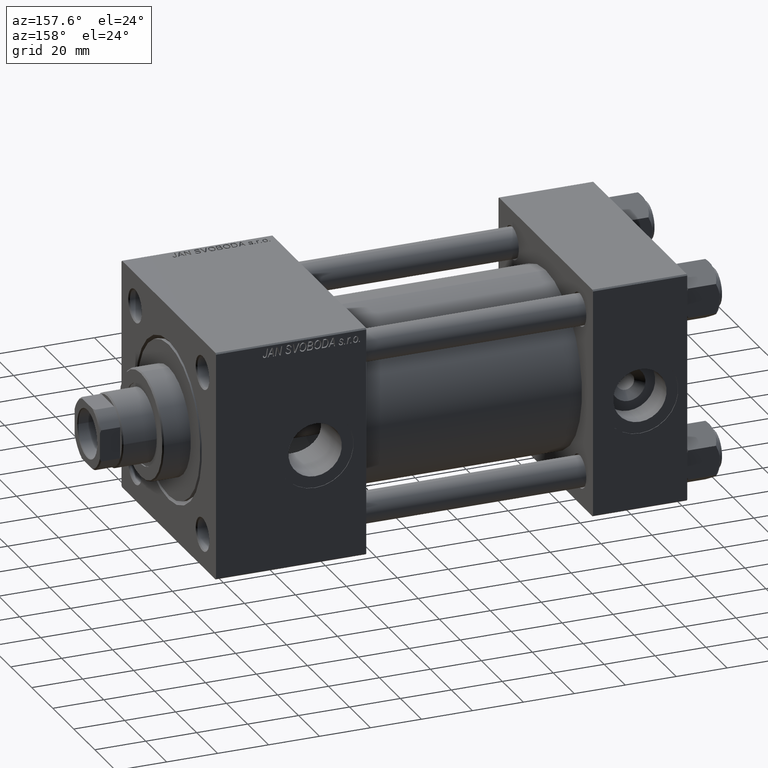
[diagram: clean part render]
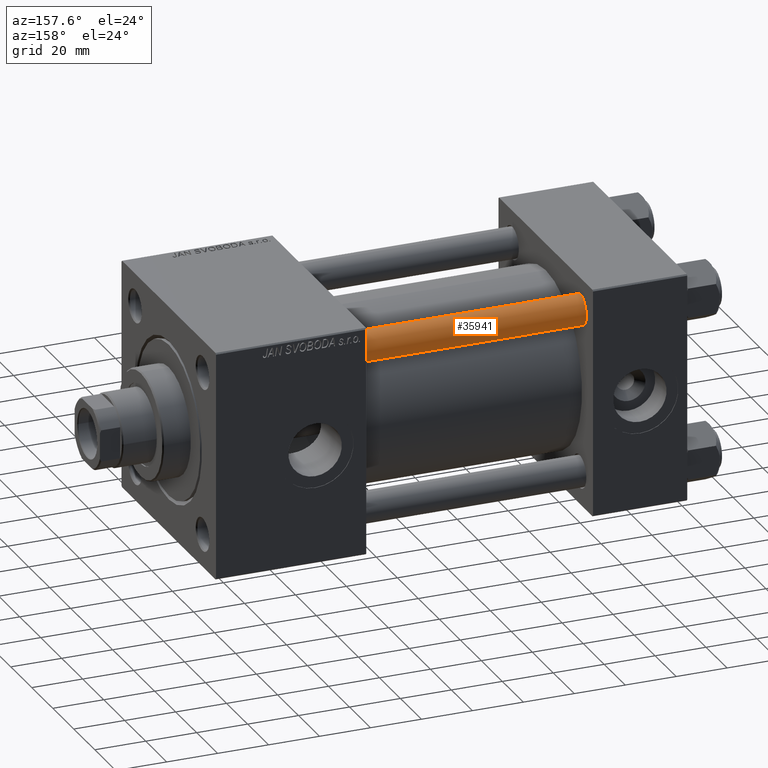
[diagram: same view with one face highlighted and labeled with its STEP entity id]
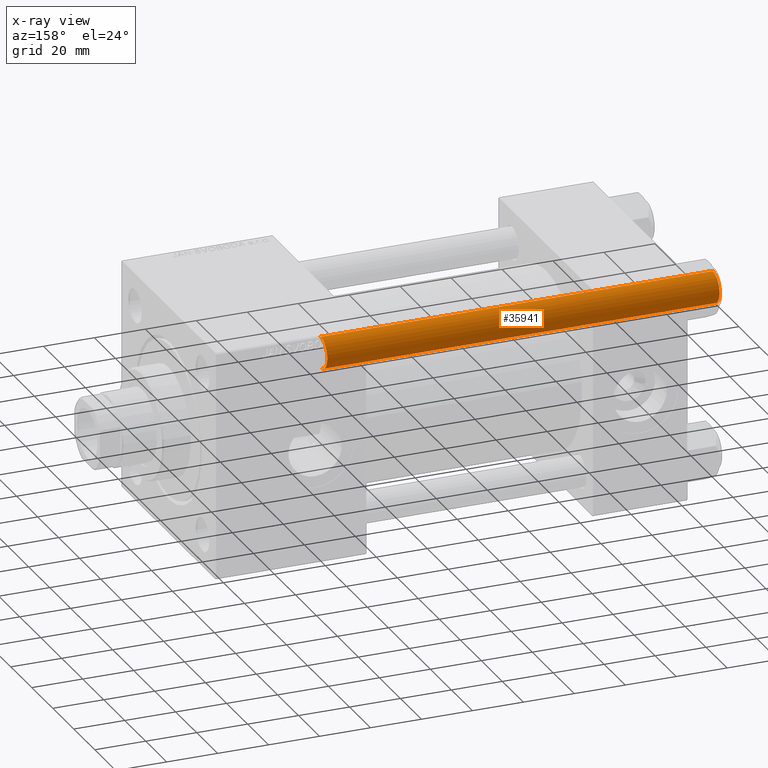
[diagram: x-ray of the same camera — body ghosted, the highlighted face saturated]
A machine part, auxiliary view. The second image highlights one B-rep face of the part: STEP entity #35941.
The next image is the same camera in x-ray: the body ghosted, the highlighted face saturated — about 0% of this face is hidden behind the body in this view.
In plain terms, the highlighted cylindrical surface (edge-blend (fillet) strip) has radius 6 mm, axis along (-1, 0, 0).
Its self-contained STEP definition (entity closure, byte-faithful):
#469 = CARTESIAN_POINT ( 'NONE',  ( 0.000000000000000000, 0.000000000000000000, 0.4999999999999726885 ) ) ;
#719 = AXIS2_PLACEMENT_3D ( 'NONE', #33571, #49307, #6882 ) ;
#2774 = DIRECTION ( 'NONE',  ( -0.000000000000000000, -0.000000000000000000, -1.000000000000000000 ) ) ;
#3024 = LINE ( 'NONE', #18266, #39703 ) ;
#3366 = EDGE_LOOP ( 'NONE', ( #23077, #29897, #5732, #41299 ) ) ;
#3517 = VERTEX_POINT ( 'NONE', #38418 ) ;
#4311 = VERTEX_POINT ( 'NONE', #26380 ) ;
#5732 = ORIENTED_EDGE ( 'NONE', *, *, #45091, .T. ) ;
#6384 = DIRECTION ( 'NONE',  ( 1.000000000000000000, 0.000000000000000000, 0.000000000000000000 ) ) ;
#6882 = DIRECTION ( 'NONE',  ( -1.000000000000000000, 0.000000000000000000, 0.000000000000000000 ) ) ;
#10426 = FACE_OUTER_BOUND ( 'NONE', #3366, .T. ) ;
#10637 = VERTEX_POINT ( 'NONE', #19356 ) ;
#11114 = CIRCLE ( 'NONE', #34646, 6.000000000000000888 ) ;
#12821 = CARTESIAN_POINT ( 'NONE',  ( -6.000000000000000888, 0.000000000000000000, 155.0000000000000000 ) ) ;
#16195 = DIRECTION ( 'NONE',  ( 1.000000000000000000, 0.000000000000000000, 0.000000000000000000 ) ) ;
#16656 = LINE ( 'NONE', #12821, #17328 ) ;
#17328 = VECTOR ( 'NONE', #47888, 1000.000000000000000 ) ;
#17329 = DIRECTION ( 'NONE',  ( 0.000000000000000000, 0.000000000000000000, -1.000000000000000000 ) ) ;
#18063 = CYLINDRICAL_SURFACE ( 'NONE', #719, 6.000000000000000888 ) ;
#18266 = CARTESIAN_POINT ( 'NONE',  ( 6.000000000000000888, 7.347880794884120722E-16, 155.0000000000000000 ) ) ;
#19356 = CARTESIAN_POINT ( 'NONE',  ( -6.000000000000000888, 0.000000000000000000, 0.4999999999999726885 ) ) ;
#20249 = EDGE_CURVE ( 'NONE', #44544, #3517, #11114, .T. ) ;
#21327 = AXIS2_PLACEMENT_3D ( 'NONE', #469, #43387, #16195 ) ;
#23077 = ORIENTED_EDGE ( 'NONE', *, *, #20249, .T. ) ;
#26380 = CARTESIAN_POINT ( 'NONE',  ( 6.000000000000000888, 7.347880794884120722E-16, 0.4999999999999726885 ) ) ;
#29897 = ORIENTED_EDGE ( 'NONE', *, *, #37068, .T. ) ;
#33571 = CARTESIAN_POINT ( 'NONE',  ( 0.000000000000000000, 0.000000000000000000, 155.0000000000000000 ) ) ;
#33581 = CARTESIAN_POINT ( 'NONE',  ( -6.000000000000000888, 0.000000000000000000, 154.5000000000000000 ) ) ;
#34646 = AXIS2_PLACEMENT_3D ( 'NONE', #41202, #17329, #6384 ) ;
#35941 = ADVANCED_FACE ( 'NONE', ( #10426 ), #18063, .T. ) ;
#37068 = EDGE_CURVE ( 'NONE', #3517, #4311, #3024, .T. ) ;
#38418 = CARTESIAN_POINT ( 'NONE',  ( 6.000000000000000888, 7.347880794884120722E-16, 154.5000000000000000 ) ) ;
#39703 = VECTOR ( 'NONE', #2774, 1000.000000000000000 ) ;
#41202 = CARTESIAN_POINT ( 'NONE',  ( 0.000000000000000000, 0.000000000000000000, 154.5000000000000000 ) ) ;
#41299 = ORIENTED_EDGE ( 'NONE', *, *, #46872, .F. ) ;
#43387 = DIRECTION ( 'NONE',  ( -0.000000000000000000, -0.000000000000000000, 1.000000000000000000 ) ) ;
#44544 = VERTEX_POINT ( 'NONE', #33581 ) ;
#45091 = EDGE_CURVE ( 'NONE', #4311, #10637, #48877, .T. ) ;
#46872 = EDGE_CURVE ( 'NONE', #44544, #10637, #16656, .T. ) ;
#47888 = DIRECTION ( 'NONE',  ( -0.000000000000000000, -0.000000000000000000, -1.000000000000000000 ) ) ;
#48877 = CIRCLE ( 'NONE', #21327, 6.000000000000000888 ) ;
#49307 = DIRECTION ( 'NONE',  ( -0.000000000000000000, -0.000000000000000000, -1.000000000000000000 ) ) ;